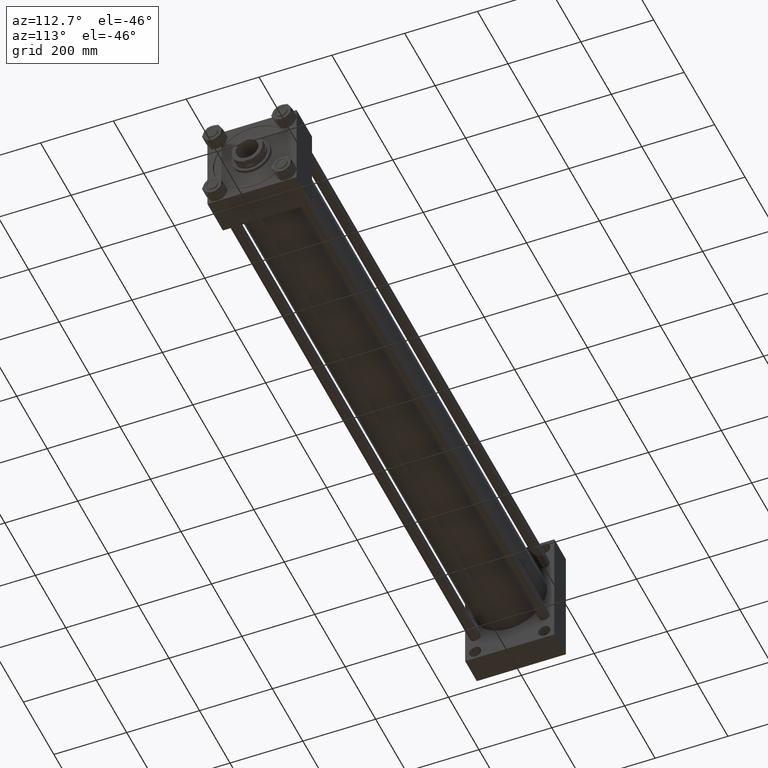
[diagram: clean part render]
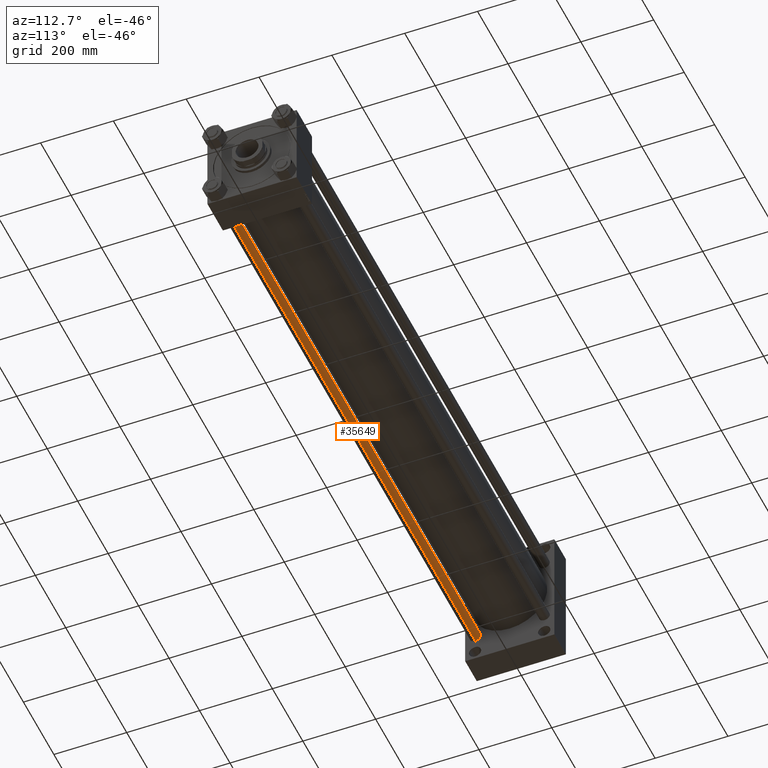
[diagram: same view with one face highlighted and labeled with its STEP entity id]
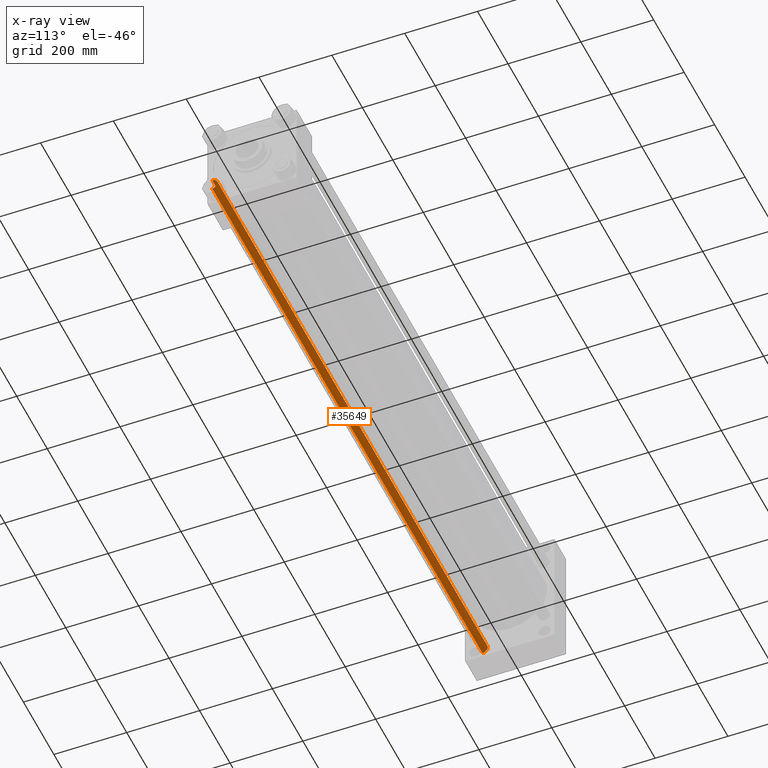
[diagram: x-ray of the same camera — body ghosted, the highlighted face saturated]
A machine part, auxiliary view. The second image highlights one B-rep face of the part: STEP entity #35649.
The next image is the same camera in x-ray: the body ghosted, the highlighted face saturated — about 0% of this face is hidden behind the body in this view.
In plain terms, the highlighted cylindrical surface (edge-blend (fillet) strip) has radius 15 mm, axis along (1, -0, -0).
Its self-contained STEP definition (entity closure, byte-faithful):
#1893 = CYLINDRICAL_SURFACE ( 'NONE', #21138, 15.00000000000000000 ) ;
#2103 = CARTESIAN_POINT ( 'NONE',  ( 15.00000000000000000, 1.836970198721029589E-15, 1774.500000000000227 ) ) ;
#2778 = EDGE_LOOP ( 'NONE', ( #9770, #29447, #10523, #49357 ) ) ;
#5759 = DIRECTION ( 'NONE',  ( -0.000000000000000000, -0.000000000000000000, 1.000000000000000000 ) ) ;
#6017 = DIRECTION ( 'NONE',  ( 1.000000000000000000, 0.000000000000000000, 0.000000000000000000 ) ) ;
#6410 = DIRECTION ( 'NONE',  ( -0.000000000000000000, -0.000000000000000000, -1.000000000000000000 ) ) ;
#6965 = CIRCLE ( 'NONE', #22455, 15.00000000000000000 ) ;
#8006 = EDGE_CURVE ( 'NONE', #43243, #32609, #50005, .T. ) ;
#9560 = DIRECTION ( 'NONE',  ( -1.000000000000000000, 0.000000000000000000, 0.000000000000000000 ) ) ;
#9770 = ORIENTED_EDGE ( 'NONE', *, *, #22215, .T. ) ;
#10523 = ORIENTED_EDGE ( 'NONE', *, *, #13244, .T. ) ;
#11358 = CARTESIAN_POINT ( 'NONE',  ( -15.00000000000000000, 0.000000000000000000, 1774.500000000000227 ) ) ;
#11414 = EDGE_CURVE ( 'NONE', #48612, #39578, #45986, .T. ) ;
#13244 = EDGE_CURVE ( 'NONE', #32609, #39578, #38445, .T. ) ;
#17618 = DIRECTION ( 'NONE',  ( 1.000000000000000000, 0.000000000000000000, 0.000000000000000000 ) ) ;
#18205 = CARTESIAN_POINT ( 'NONE',  ( -15.00000000000000000, 0.000000000000000000, 0.4999999999997228883 ) ) ;
#18864 = CARTESIAN_POINT ( 'NONE',  ( 15.00000000000000000, 1.836970198721029589E-15, 1775.000000000000000 ) ) ;
#21138 = AXIS2_PLACEMENT_3D ( 'NONE', #45029, #28981, #9560 ) ;
#22215 = EDGE_CURVE ( 'NONE', #48612, #43243, #6965, .T. ) ;
#22455 = AXIS2_PLACEMENT_3D ( 'NONE', #29366, #49255, #17618 ) ;
#24617 = AXIS2_PLACEMENT_3D ( 'NONE', #25192, #5759, #6017 ) ;
#25192 = CARTESIAN_POINT ( 'NONE',  ( 0.000000000000000000, 0.000000000000000000, 0.4999999999997228883 ) ) ;
#25450 = VECTOR ( 'NONE', #6410, 1000.000000000000000 ) ;
#26081 = CARTESIAN_POINT ( 'NONE',  ( -15.00000000000000000, 0.000000000000000000, 1775.000000000000000 ) ) ;
#26169 = VECTOR ( 'NONE', #38983, 1000.000000000000000 ) ;
#28317 = CARTESIAN_POINT ( 'NONE',  ( 15.00000000000000000, 1.836970198721029589E-15, 0.4999999999997228883 ) ) ;
#28981 = DIRECTION ( 'NONE',  ( -0.000000000000000000, -0.000000000000000000, -1.000000000000000000 ) ) ;
#29366 = CARTESIAN_POINT ( 'NONE',  ( 0.000000000000000000, 0.000000000000000000, 1774.500000000000227 ) ) ;
#29447 = ORIENTED_EDGE ( 'NONE', *, *, #8006, .T. ) ;
#32609 = VERTEX_POINT ( 'NONE', #28317 ) ;
#35649 = ADVANCED_FACE ( 'NONE', ( #48377 ), #1893, .T. ) ;
#38445 = CIRCLE ( 'NONE', #24617, 15.00000000000000000 ) ;
#38983 = DIRECTION ( 'NONE',  ( -0.000000000000000000, -0.000000000000000000, -1.000000000000000000 ) ) ;
#39578 = VERTEX_POINT ( 'NONE', #18205 ) ;
#43243 = VERTEX_POINT ( 'NONE', #2103 ) ;
#45029 = CARTESIAN_POINT ( 'NONE',  ( 0.000000000000000000, 0.000000000000000000, 1775.000000000000000 ) ) ;
#45986 = LINE ( 'NONE', #26081, #25450 ) ;
#48377 = FACE_OUTER_BOUND ( 'NONE', #2778, .T. ) ;
#48612 = VERTEX_POINT ( 'NONE', #11358 ) ;
#49255 = DIRECTION ( 'NONE',  ( 0.000000000000000000, 0.000000000000000000, -1.000000000000000000 ) ) ;
#49357 = ORIENTED_EDGE ( 'NONE', *, *, #11414, .F. ) ;
#50005 = LINE ( 'NONE', #18864, #26169 ) ;